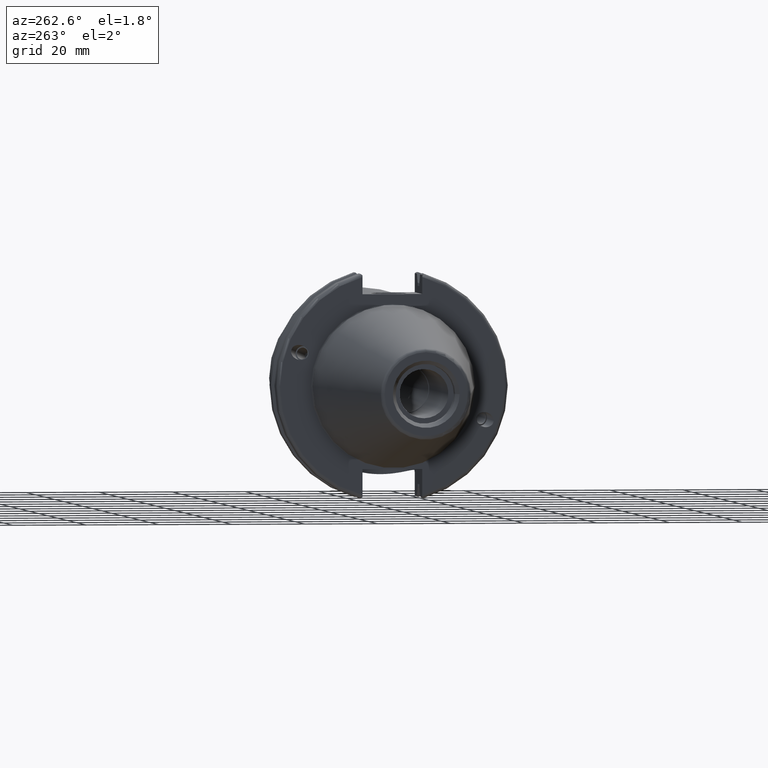
[diagram: clean part render]
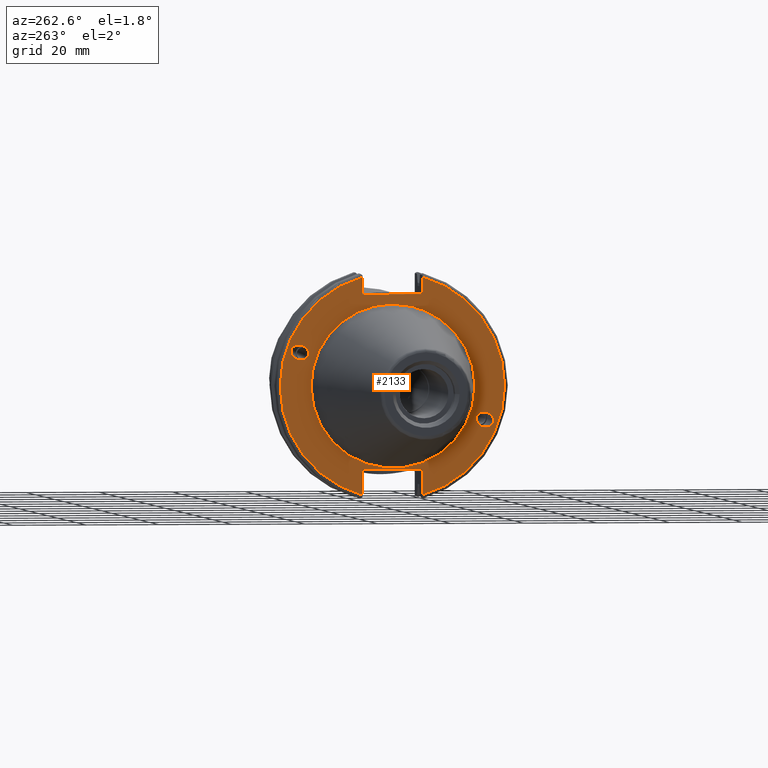
[diagram: same view with one face highlighted and labeled with its STEP entity id]
A machine part, auxiliary view. The second image highlights one B-rep face of the part: STEP entity #2133.
In plain terms, the highlighted planar face has unit normal (-1, 0, 0).
Its self-contained STEP definition (entity closure, byte-faithful):
#39=ELLIPSE('',#2362,2.44154917752292,2.00000000000001);
#48=ELLIPSE('',#2410,2.44154917752292,2.00000000000001);
#62=PLANE('',#2423);
#129=FACE_BOUND('',#350,.T.);
#130=FACE_BOUND('',#351,.T.);
#131=FACE_BOUND('',#352,.T.);
#234=FACE_OUTER_BOUND('',#349,.T.);
#349=EDGE_LOOP('',(#1788,#1789,#1790,#1791,#1792,#1793,#1794,#1795));
#350=EDGE_LOOP('',(#1796));
#351=EDGE_LOOP('',(#1797));
#352=EDGE_LOOP('',(#1798,#1799));
#451=LINE('',#3939,#545);
#452=LINE('',#3941,#546);
#453=LINE('',#3943,#547);
#454=LINE('',#3947,#548);
#455=LINE('',#3949,#549);
#456=LINE('',#3950,#550);
#545=VECTOR('',#3017,10.);
#546=VECTOR('',#3018,10.);
#547=VECTOR('',#3019,10.);
#548=VECTOR('',#3022,10.);
#549=VECTOR('',#3023,10.);
#550=VECTOR('',#3024,10.);
#726=CIRCLE('',#2419,22.3);
#727=CIRCLE('',#2420,22.3);
#730=CIRCLE('',#2424,30.75);
#731=CIRCLE('',#2425,30.75);
#895=VERTEX_POINT('',#3716);
#940=VERTEX_POINT('',#3909);
#946=VERTEX_POINT('',#3926);
#947=VERTEX_POINT('',#3928);
#949=VERTEX_POINT('',#3935);
#950=VERTEX_POINT('',#3936);
#951=VERTEX_POINT('',#3938);
#952=VERTEX_POINT('',#3940);
#953=VERTEX_POINT('',#3942);
#954=VERTEX_POINT('',#3944);
#955=VERTEX_POINT('',#3946);
#956=VERTEX_POINT('',#3948);
#1179=EDGE_CURVE('',#895,#895,#39,.T.);
#1240=EDGE_CURVE('',#940,#940,#48,.T.);
#1248=EDGE_CURVE('',#946,#947,#726,.T.);
#1249=EDGE_CURVE('',#947,#946,#727,.T.);
#1252=EDGE_CURVE('',#949,#950,#730,.T.);
#1253=EDGE_CURVE('',#949,#951,#451,.T.);
#1254=EDGE_CURVE('',#951,#952,#452,.T.);
#1255=EDGE_CURVE('',#952,#953,#453,.T.);
#1256=EDGE_CURVE('',#954,#953,#731,.T.);
#1257=EDGE_CURVE('',#954,#955,#454,.T.);
#1258=EDGE_CURVE('',#955,#956,#455,.T.);
#1259=EDGE_CURVE('',#956,#950,#456,.T.);
#1788=ORIENTED_EDGE('',*,*,#1252,.F.);
#1789=ORIENTED_EDGE('',*,*,#1253,.T.);
#1790=ORIENTED_EDGE('',*,*,#1254,.T.);
#1791=ORIENTED_EDGE('',*,*,#1255,.T.);
#1792=ORIENTED_EDGE('',*,*,#1256,.F.);
#1793=ORIENTED_EDGE('',*,*,#1257,.T.);
#1794=ORIENTED_EDGE('',*,*,#1258,.T.);
#1795=ORIENTED_EDGE('',*,*,#1259,.T.);
#1796=ORIENTED_EDGE('',*,*,#1179,.T.);
#1797=ORIENTED_EDGE('',*,*,#1240,.T.);
#1798=ORIENTED_EDGE('',*,*,#1249,.F.);
#1799=ORIENTED_EDGE('',*,*,#1248,.F.);
#2133=ADVANCED_FACE('',(#234,#129,#130,#131),#62,.T.);
#2362=AXIS2_PLACEMENT_3D('',#3718,#2872,#2873);
#2410=AXIS2_PLACEMENT_3D('',#3911,#2985,#2986);
#2419=AXIS2_PLACEMENT_3D('',#3929,#3005,#3006);
#2420=AXIS2_PLACEMENT_3D('',#3930,#3007,#3008);
#2423=AXIS2_PLACEMENT_3D('',#3934,#3013,#3014);
#2424=AXIS2_PLACEMENT_3D('',#3937,#3015,#3016);
#2425=AXIS2_PLACEMENT_3D('',#3945,#3020,#3021);
#2872=DIRECTION('center_axis',(1.,0.,0.));
#2873=DIRECTION('ref_axis',(5.68400912649E-17,-0.939692620785909,-0.342020143325667));
#2985=DIRECTION('center_axis',(1.,0.,0.));
#2986=DIRECTION('ref_axis',(5.68400912649E-17,0.939692620785909,0.342020143325667));
#3005=DIRECTION('center_axis',(-1.,0.,0.));
#3006=DIRECTION('ref_axis',(0.,-1.,1.83697019872103E-16));
#3007=DIRECTION('center_axis',(-1.,0.,0.));
#3008=DIRECTION('ref_axis',(0.,-1.,1.83697019872103E-16));
#3013=DIRECTION('center_axis',(-1.,0.,0.));
#3014=DIRECTION('ref_axis',(0.,0.,1.));
#3015=DIRECTION('center_axis',(1.,0.,0.));
#3016=DIRECTION('ref_axis',(0.,-1.,1.60812264967664E-16));
#3017=DIRECTION('',(0.,0.,-1.));
#3018=DIRECTION('',(0.,1.,0.));
#3019=DIRECTION('',(0.,0.,1.));
#3020=DIRECTION('center_axis',(1.,0.,0.));
#3021=DIRECTION('ref_axis',(0.,1.,1.60812264967664E-16));
#3022=DIRECTION('',(0.,0.,1.));
#3023=DIRECTION('',(0.,-1.,0.));
#3024=DIRECTION('',(0.,0.,-1.));
#3716=CARTESIAN_POINT('',(3.175,-23.0773950158153,-8.39948487016));
#3718=CARTESIAN_POINT('Origin',(3.175,-25.3717007612195,-9.23454386979305));
#3909=CARTESIAN_POINT('',(3.175,23.0773950158153,8.39948487016));
#3911=CARTESIAN_POINT('Origin',(3.175,25.3717007612195,9.23454386979306));
#3926=CARTESIAN_POINT('',(3.175,-2.7309623620986E-15,22.3));
#3928=CARTESIAN_POINT('',(3.175,22.3,-6.8274059052465E-15));
#3929=CARTESIAN_POINT('Origin',(3.175,0.,0.));
#3930=CARTESIAN_POINT('Origin',(3.175,0.,0.));
#3934=CARTESIAN_POINT('Origin',(3.175,31.75,0.));
#3935=CARTESIAN_POINT('',(3.175,-8.18999999999999,29.6392712461019));
#3936=CARTESIAN_POINT('',(3.175,-8.19,-29.6392712461019));
#3937=CARTESIAN_POINT('Origin',(3.175,0.,0.));
#3938=CARTESIAN_POINT('',(3.175,-8.19,25.));
#3939=CARTESIAN_POINT('',(3.175,-8.18999999999999,12.5));
#3940=CARTESIAN_POINT('',(3.175,8.19,25.));
#3941=CARTESIAN_POINT('',(3.175,15.875,25.));
#3942=CARTESIAN_POINT('',(3.175,8.19,29.6392712461019));
#3943=CARTESIAN_POINT('',(3.175,8.19,12.5));
#3944=CARTESIAN_POINT('',(3.175,8.18999999999999,-29.6392712461019));
#3945=CARTESIAN_POINT('Origin',(3.175,0.,0.));
#3946=CARTESIAN_POINT('',(3.175,8.19,-22.6));
#3947=CARTESIAN_POINT('',(3.175,8.18999999999999,-11.3));
#3948=CARTESIAN_POINT('',(3.175,-8.19,-22.6));
#3949=CARTESIAN_POINT('',(3.175,15.875,-22.6));
#3950=CARTESIAN_POINT('',(3.175,-8.19,-11.3));